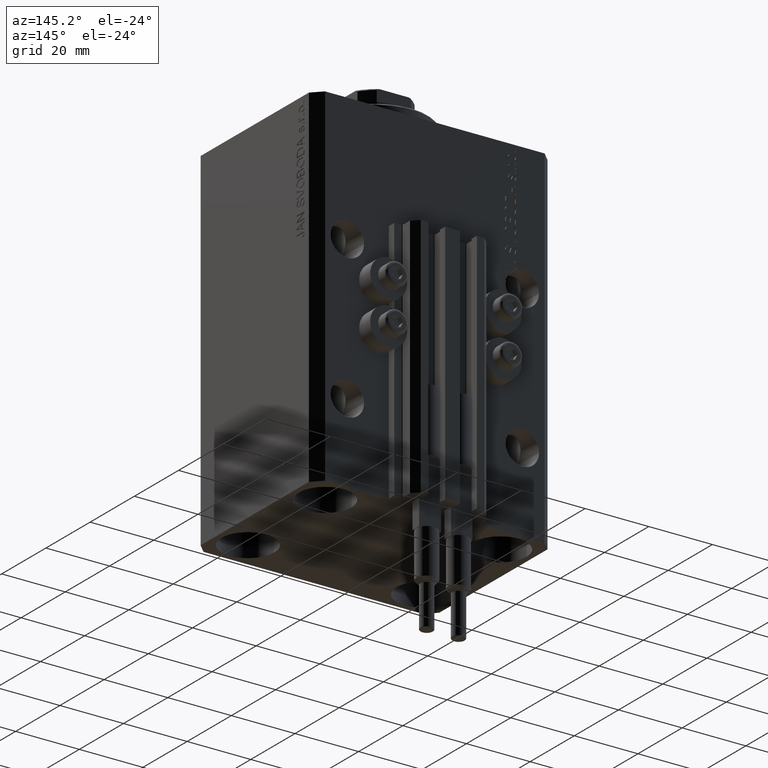
[diagram: clean part render]
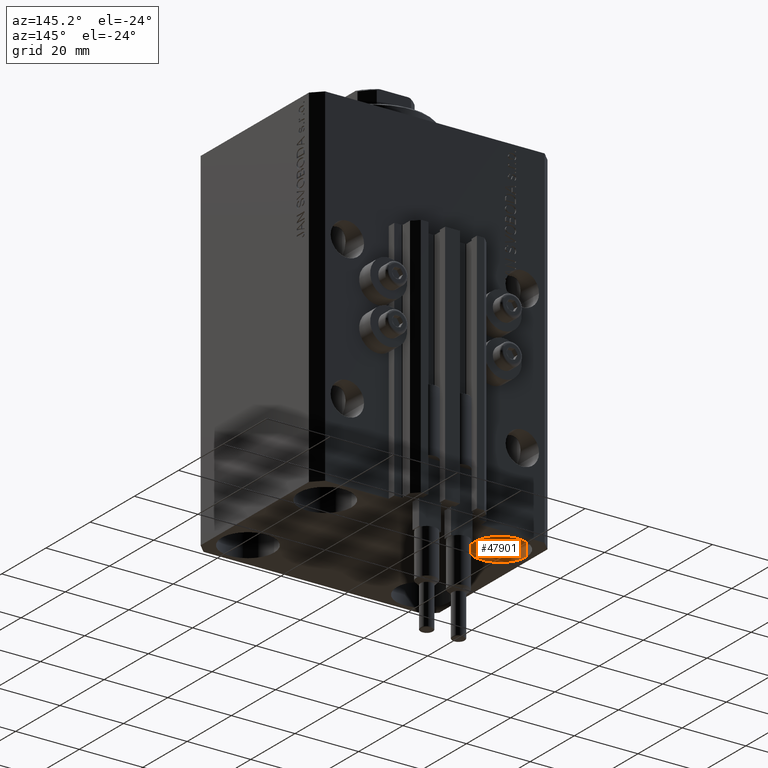
[diagram: same view with one face highlighted and labeled with its STEP entity id]
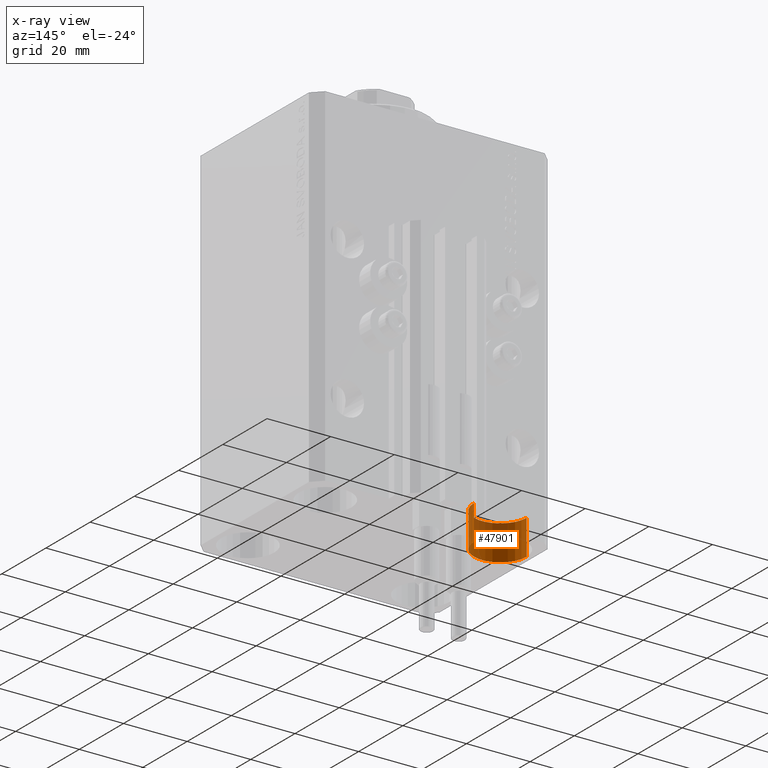
[diagram: x-ray of the same camera — body ghosted, the highlighted face saturated]
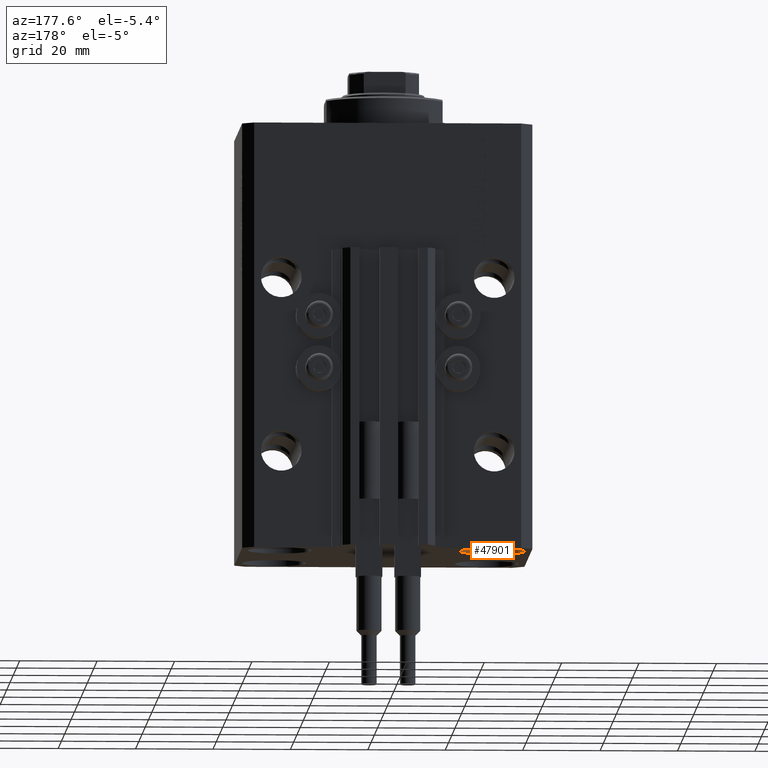
[diagram: same view with one face highlighted and labeled with its STEP entity id]
A machine part, auxiliary view. The second image highlights one B-rep face of the part: STEP entity #47901.
The next image is the same camera in x-ray: the body ghosted, the highlighted face saturated — about 22% of this face is hidden behind the body in this view.
A second angle (auxiliary view) of the same face is appended — the face is thin or edge-on in the first view.
In plain terms, the highlighted cylindrical surface (edge-blend (fillet) strip) has radius 8.25 mm, axis along (-0, -0, -1).
Its self-contained STEP definition (entity closure, byte-faithful):
#847 = DIRECTION ( 'NONE',  ( -1.000000000000000000, 0.000000000000000000, 0.000000000000000000 ) ) ;
#1988 = EDGE_LOOP ( 'NONE', ( #34516, #35570, #18484, #27535 ) ) ;
#2039 = VECTOR ( 'NONE', #6483, 1000.000000000000000 ) ;
#2877 = CARTESIAN_POINT ( 'NONE',  ( -35.75000000000000711, 17.50000000000000000, -99.00000000000000000 ) ) ;
#5656 = VERTEX_POINT ( 'NONE', #33499 ) ;
#6483 = DIRECTION ( 'NONE',  ( -0.000000000000000000, -0.000000000000000000, -1.000000000000000000 ) ) ;
#8579 = CARTESIAN_POINT ( 'NONE',  ( -27.50000000000000355, 17.50000000000000000, -99.00000000000000000 ) ) ;
#10479 = CARTESIAN_POINT ( 'NONE',  ( -19.25000000000000355, 17.50000000000000000, -99.00000000000000000 ) ) ;
#11329 = DIRECTION ( 'NONE',  ( -0.000000000000000000, -0.000000000000000000, -1.000000000000000000 ) ) ;
#11496 = CARTESIAN_POINT ( 'NONE',  ( -19.25000000000000355, 17.50000000000000000, -110.0000000000000000 ) ) ;
#12018 = CARTESIAN_POINT ( 'NONE',  ( -35.75000000000000711, 17.50000000000000000, -99.00000000000000000 ) ) ;
#12466 = DIRECTION ( 'NONE',  ( 1.000000000000000000, 0.000000000000000000, 0.000000000000000000 ) ) ;
#15473 = CYLINDRICAL_SURFACE ( 'NONE', #37515, 8.250000000000000000 ) ;
#17121 = EDGE_CURVE ( 'NONE', #27732, #36108, #28193, .T. ) ;
#18484 = ORIENTED_EDGE ( 'NONE', *, *, #47162, .F. ) ;
#19353 = LINE ( 'NONE', #12018, #44390 ) ;
#21527 = CARTESIAN_POINT ( 'NONE',  ( -27.50000000000000355, 17.50000000000000000, -110.0000000000000000 ) ) ;
#23028 = FACE_OUTER_BOUND ( 'NONE', #1988, .T. ) ;
#26895 = DIRECTION ( 'NONE',  ( -0.000000000000000000, -0.000000000000000000, -1.000000000000000000 ) ) ;
#27535 = ORIENTED_EDGE ( 'NONE', *, *, #45246, .F. ) ;
#27732 = VERTEX_POINT ( 'NONE', #10479 ) ;
#28193 = LINE ( 'NONE', #28423, #2039 ) ;
#28423 = CARTESIAN_POINT ( 'NONE',  ( -19.25000000000000355, 17.50000000000000000, -99.00000000000000000 ) ) ;
#30020 = AXIS2_PLACEMENT_3D ( 'NONE', #8579, #42656, #12466 ) ;
#30630 = EDGE_CURVE ( 'NONE', #33703, #27732, #44807, .T. ) ;
#31276 = CIRCLE ( 'NONE', #35918, 8.250000000000000000 ) ;
#33275 = CARTESIAN_POINT ( 'NONE',  ( -27.50000000000000355, 17.50000000000000000, -99.00000000000000000 ) ) ;
#33499 = CARTESIAN_POINT ( 'NONE',  ( -35.75000000000000711, 17.50000000000000000, -110.0000000000000000 ) ) ;
#33703 = VERTEX_POINT ( 'NONE', #2877 ) ;
#34516 = ORIENTED_EDGE ( 'NONE', *, *, #30630, .T. ) ;
#35570 = ORIENTED_EDGE ( 'NONE', *, *, #17121, .T. ) ;
#35901 = DIRECTION ( 'NONE',  ( -0.000000000000000000, -0.000000000000000000, 1.000000000000000000 ) ) ;
#35918 = AXIS2_PLACEMENT_3D ( 'NONE', #21527, #35901, #43197 ) ;
#36108 = VERTEX_POINT ( 'NONE', #11496 ) ;
#37515 = AXIS2_PLACEMENT_3D ( 'NONE', #33275, #11329, #847 ) ;
#42656 = DIRECTION ( 'NONE',  ( -0.000000000000000000, -0.000000000000000000, 1.000000000000000000 ) ) ;
#43197 = DIRECTION ( 'NONE',  ( 1.000000000000000000, 0.000000000000000000, 0.000000000000000000 ) ) ;
#44390 = VECTOR ( 'NONE', #26895, 1000.000000000000000 ) ;
#44807 = CIRCLE ( 'NONE', #30020, 8.250000000000000000 ) ;
#45246 = EDGE_CURVE ( 'NONE', #33703, #5656, #19353, .T. ) ;
#47162 = EDGE_CURVE ( 'NONE', #5656, #36108, #31276, .T. ) ;
#47901 = ADVANCED_FACE ( 'NONE', ( #23028 ), #15473, .F. ) ;